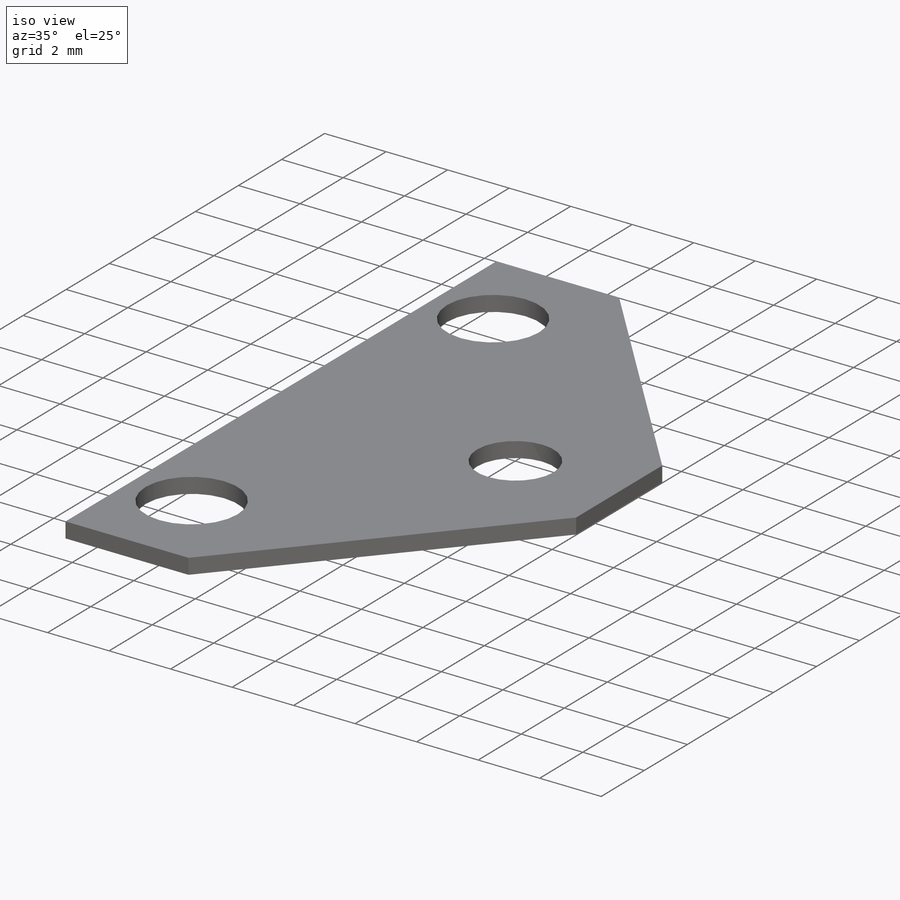
[diagram: iso view]
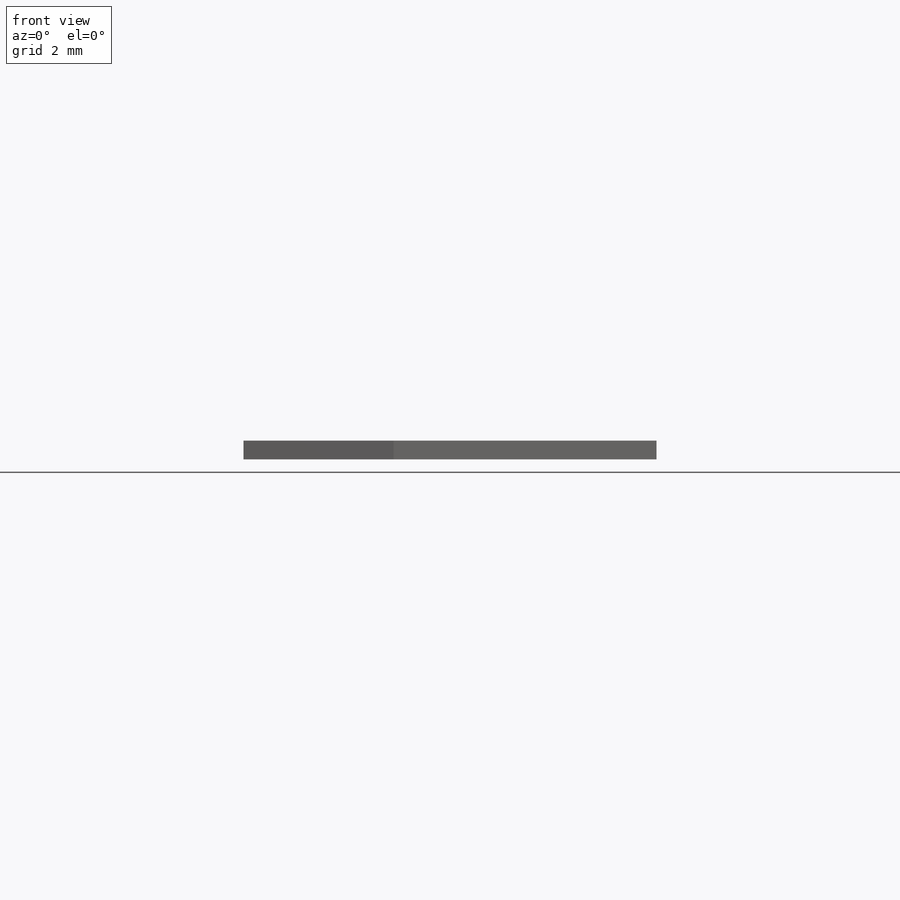
[diagram: front view]
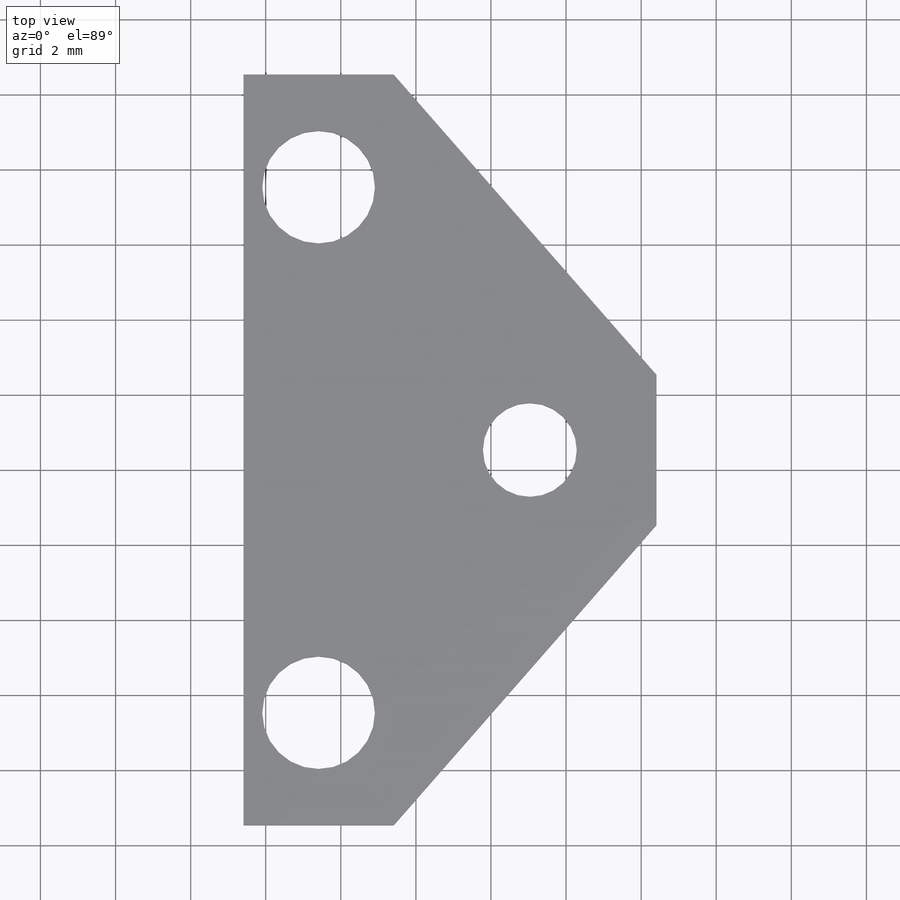
[diagram: top view]
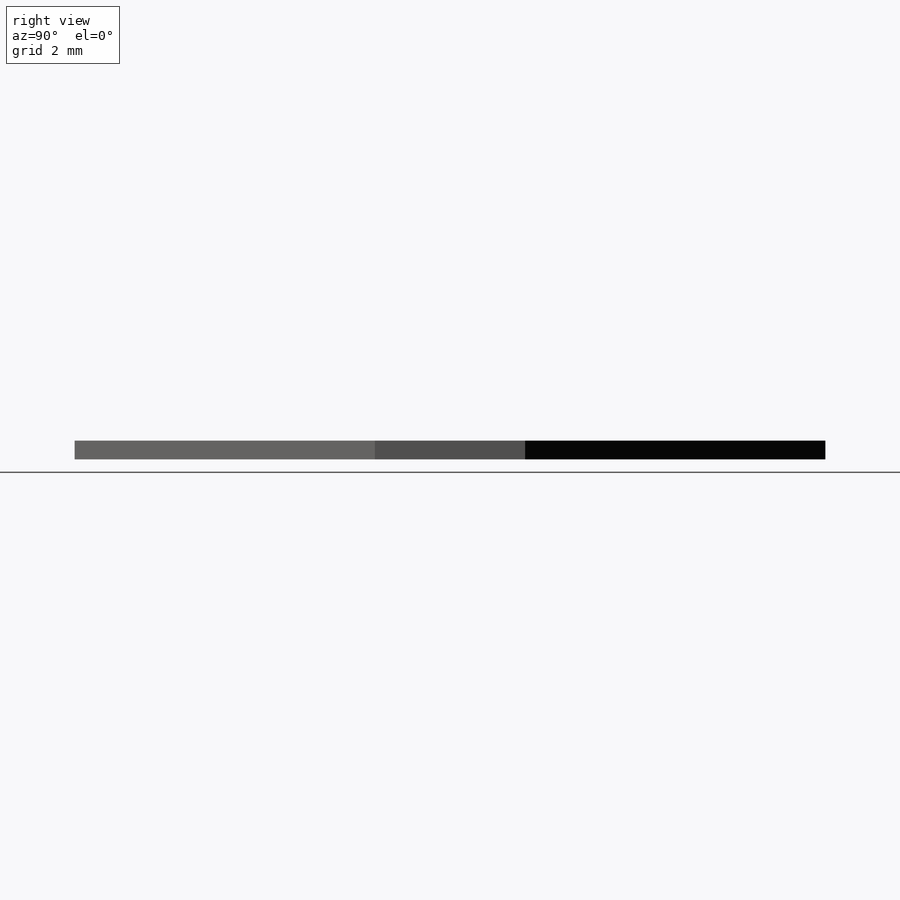
[diagram: right view]
SOLIDWORKS PART (.sldprt)
format: sldprt  version: not decoded by parser v0  size: 348,160 bytes
history: native  units: mm
features: sketch x7, hole x2, material x1, extrude x1, thread x1 (+12 scaffold rows collapsed)
feature tree (24):
  scaffold x12  (default folders/planes/origin — collapsed)
  material  "Material <not specified>"
  sketch  "Sketch1"  dims[c1.D8=5.0mm c1.D1=8.0mm c1.D2=4.0mm c1.D3=4.0mm c1.D4=4.0mm c2.D1=2.0mm c2.D4=2.0mm c2.D5=20.0mm c2.D6=20.0mm c2.D7=11.0mm c2.D8=9.0mm]
  extrude  "Boss-Extrude1"  Depth=0.5mm
  sketch  "Sketch5"  dims[D1=3.0mm D2=2.0mm D3=2.0mm D4=3.0mm]
  hole  "Ø3.0mm Dowel Hole1"  Diameter=3mm Depth=12.75mm
  sketch  "3DSketch2"
  sketch  "Sketch7"  dims[hole-wizard template sketch: 47 standard entries collapsed; hole parameters kept: c15.Hole Depth=12.75mm c15.D3=~14.816244mm c15.Drill Angle=118.0deg]
  sketch  "Sketch9"
  hole  "M3 Tapped Hole2"  Diameter=2.5mm Depth=7.5mm
  sketch  "3DSketch4"
  sketch  "Sketch11"  dims[hole-wizard template sketch: 50 standard entries collapsed; hole parameters above]
  thread  "Hole Thread3"  Diameter=0.5mm  [1 undecoded]
decode coverage: 8 of 11 modeling features carry decoded parameters
note: ~ marks probable driven/reference dimensions
note: 1 parameter value undecoded
note: suppression state not decoded; provenance and decode notes live in map.json
